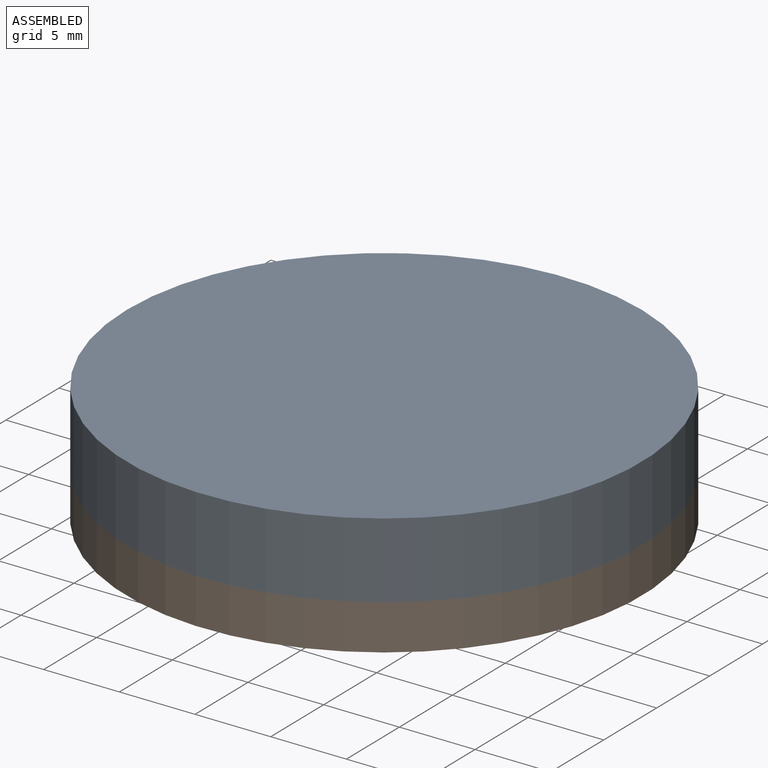
[diagram: assembled view]
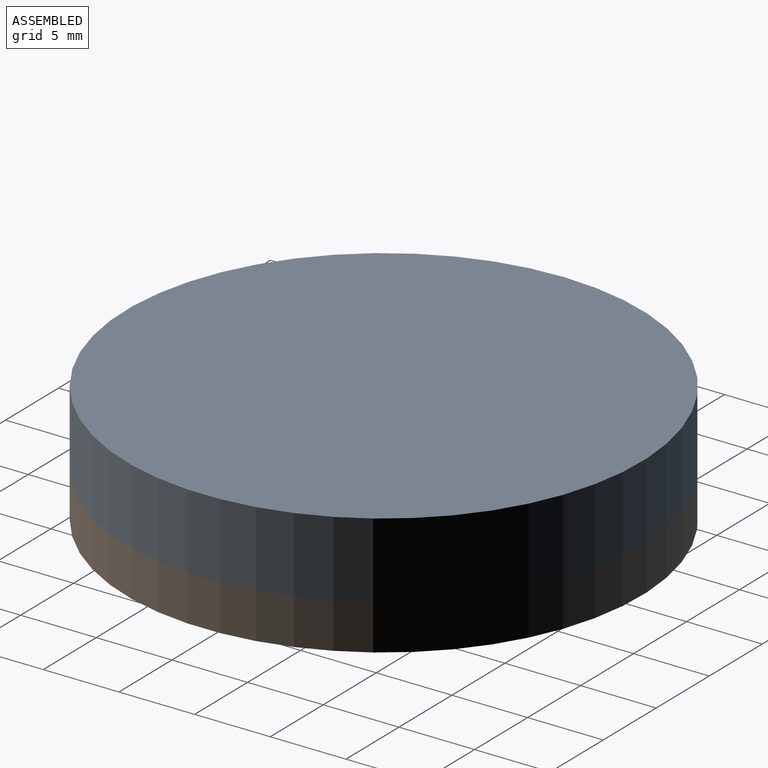
[diagram: assembled view, second angle]
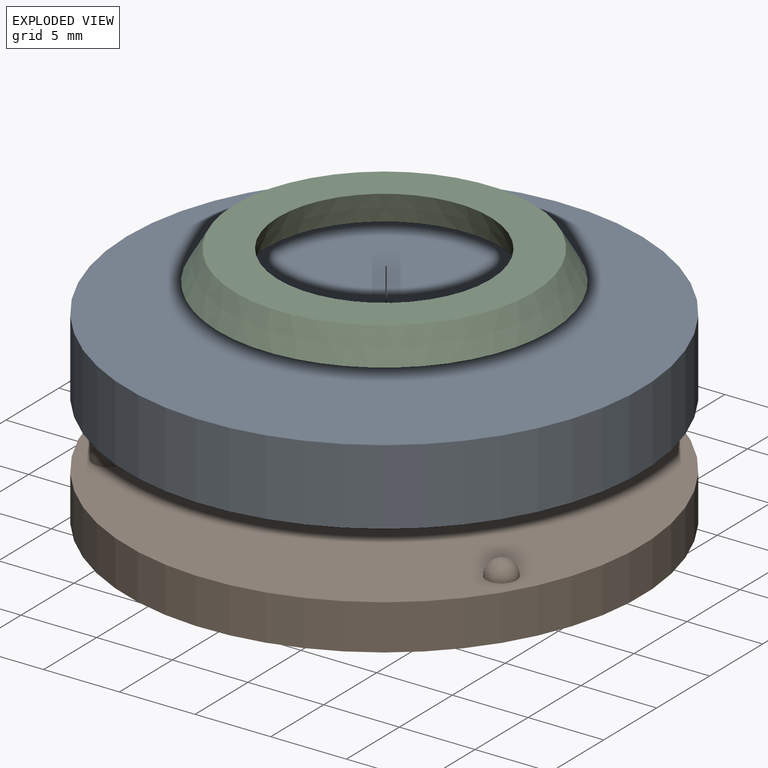
[diagram: exploded view]
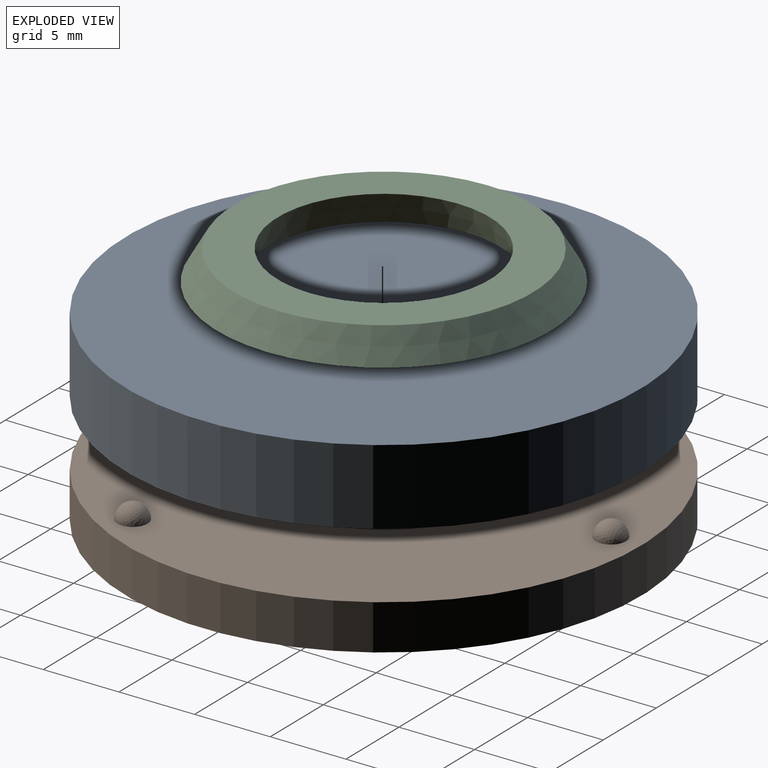
[diagram: exploded view, second angle]
ASSEMBLY  parts=3 mates=2
PART A: 14 faces, bbox 34x34x5 mm
  f0: sphere r=1.1mm, area 7.6mm2, adj f5
  f1: sphere r=1.1mm, area 7.6mm2, adj f5
  f2: plane 19.7x19.7mm, normal (0,0,-1), area 304.8mm2, adj f10
  f3: plane 34.01x34.01mm, normal (0,0,1), area 908.4mm2, adj f4
  f4: cylinder r=17mm len=34.01mm, axis (0,0,-1), area 534.2mm2, adj f3,f5
  f5: plane 34.01x34.01mm, normal (0,0,-1), area 340.9mm2, adj f0,f1,f4,f6,f11
  f6: cylinder r=13.3mm len=26.61mm, axis (0,0,-1), area 41.8mm2, adj f5,f12
  f7: plane 25.61x25.61mm, normal (0,0,-1), area 51.8mm2, adj f12,f13
  f8: cone r=11.4mm half-angle=21.8deg, axis (0,0,1), area 53.6mm2, adj f9,f13
  f9: plane 22.81x22.81mm, normal (0,0,-1), area 28.2mm2, adj f8,f10
  f10: cone r=11mm half-angle=30deg, axis (0,0,-1), area 151.3mm2, adj f2,f9
  f11: sphere r=1.1mm, area 7.6mm2, adj f5
  f12: torus R=12.8mm, axis (0,0,-1), area 64.8mm2, adj f6,f7
  f13: torus R=12.14mm, axis (0,0,-1), area 44.4mm2, adj f7,f8
PART B: 14 faces, bbox 34x34x5 mm
  f0: sphere r=1mm, area 6.3mm2, adj f2
  f1: sphere r=1mm, area 6.3mm2, adj f2
  f2: plane 34.01x34.01mm, normal (0,0,1), area 711.4mm2, adj f0,f1,f3,f10,f11
  f3: cylinder r=17mm len=34.01mm, axis (0,0,-1), area 320.5mm2, adj f2,f4
  f4: plane 34.01x34.01mm, normal (0,0,-1), area 908.4mm2, adj f3
  f5: plane 6.4x6.4mm, normal (0,0,1), area 32.2mm2, adj f6
  f6: cylinder r=3.2mm len=6.4mm, axis (0,0,-1), area 10.1mm2, adj f5,f12
  f7: plane 11.72x11.72mm, normal (0,0,1), area 64.9mm2, adj f12,f13
  f8: cone r=6.6mm half-angle=21.8deg, axis (0,0,1), area 30mm2, adj f9,f13
  f9: plane 14x14mm, normal (0,0,1), area 17.1mm2, adj f8,f10
  f10: cone r=7mm half-angle=20deg, axis (0,0,-1), area 98.5mm2, adj f2,f9
  f11: sphere r=1mm, area 6.3mm2, adj f2
  f12: torus R=3.7mm, axis (0,0,1), area 16.7mm2, adj f6,f7
  f13: torus R=5.86mm, axis (0,0,1), area 22.9mm2, adj f7,f8
PART C: 4 faces, bbox 22x22x2 mm
  f0: cone r=7mm half-angle=20deg, axis (0,0,-1), area 98.5mm2, adj f2,f3
  f1: cone r=9.85mm half-angle=30deg, axis (0,0,-1), area 151.3mm2, adj f2,f3
  f2: plane 19.7x19.7mm, normal (0,0,1), area 150.9mm2, adj f0,f1
  f3: plane 22.01x22.01mm, normal (0,0,-1), area 192.8mm2, adj f0,f1
PLACE A t=(0,0,-2)mm
PLACE B t=(0,0,-2)mm
PLACE C t=(0,0,-2)mm
MATE fastened A.f4 <-> B.f3  axis (0,0,-1) through (0,0,0)mm
MATE fastened C.f1 <-> B.f3  axis (0,0,-1) through (0,0,-2)mm
